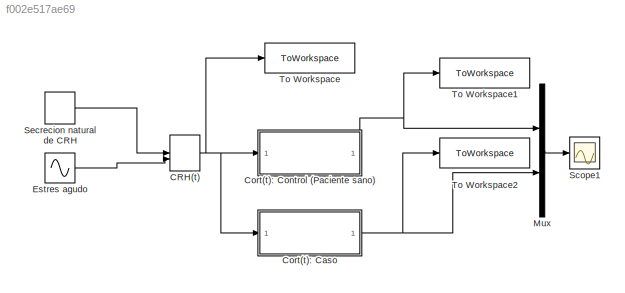
MODEL slx_f002e517ae69
KIND model
CONFIG AbsTol = 1e-5
CONFIG EnableMultiTasking = off
CONFIG FixedStep = auto
CONFIG MaxStep = 1e-3
CONFIG MinStep = auto
CONFIG RelTol = 1e-3
CONFIG SampleTimeConstraint = Unconstrained
CONFIG SolverName = ode15s
CONFIG StartTime = 0.0
CONFIG StopTime = 20
BLOCK [ManualSwitch] CRH(t)
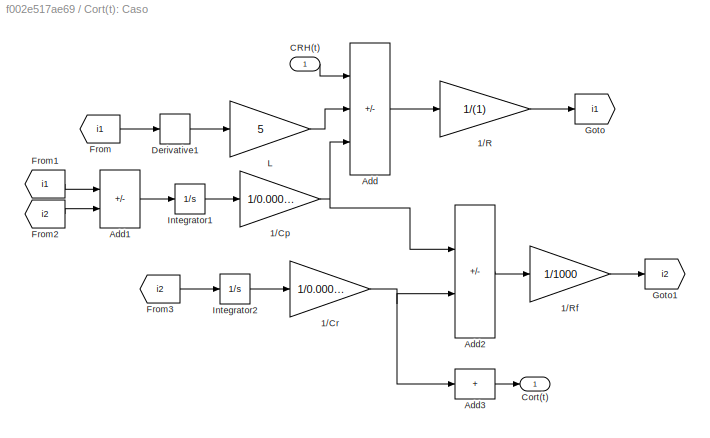
BLOCK [SubSystem] Cort(t): Caso 
BLOCK [Gain] Cort(t): Caso /1//Cp
  Gain = 1/0.000200
BLOCK [Gain] Cort(t): Caso /1//Cr
  Gain = 1/0.000500
BLOCK [Gain] Cort(t): Caso /1//R
  Gain = 1/(1)
BLOCK [Gain] Cort(t): Caso /1//Rf
  Gain = 1/1000
BLOCK [Sum] Cort(t): Caso /Add
  IconShape = rectangular
  Inputs = +--
BLOCK [Sum] Cort(t): Caso /Add1
  IconShape = rectangular
  Inputs = +-
BLOCK [Sum] Cort(t): Caso /Add2
  IconShape = rectangular
  Inputs = +-
BLOCK [Sum] Cort(t): Caso /Add3
  IconShape = rectangular
  Inputs = +
BLOCK [Inport] Cort(t): Caso /CRH(t)
BLOCK [Outport] Cort(t): Caso /Cort(t)
BLOCK [Derivative] Cort(t): Caso /Derivative1
BLOCK [From] Cort(t): Caso /From
  GotoTag = i1
BLOCK [From] Cort(t): Caso /From1
  GotoTag = i1
BLOCK [From] Cort(t): Caso /From2
  GotoTag = i2
BLOCK [From] Cort(t): Caso /From3
  GotoTag = i2
BLOCK [Goto] Cort(t): Caso /Goto
  GotoTag = i1
BLOCK [Goto] Cort(t): Caso /Goto1
  GotoTag = i2
BLOCK [Integrator] Cort(t): Caso /Integrator1
BLOCK [Integrator] Cort(t): Caso /Integrator2
BLOCK [Gain] Cort(t): Caso /L
  Gain = 5
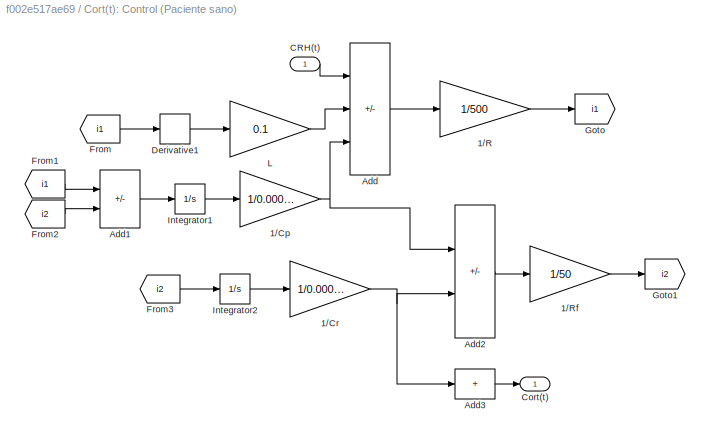
BLOCK [SubSystem] Cort(t): Control (Paciente sano)
BLOCK [Gain] Cort(t): Control (Paciente sano)/1//Cp
  Gain = 1/0.000050
BLOCK [Gain] Cort(t): Control (Paciente sano)/1//Cr
  Gain = 1/0.000010
BLOCK [Gain] Cort(t): Control (Paciente sano)/1//R
  Gain = 1/500
BLOCK [Gain] Cort(t): Control (Paciente sano)/1//Rf
  Gain = 1/50
BLOCK [Sum] Cort(t): Control (Paciente sano)/Add
  IconShape = rectangular
  Inputs = +--
BLOCK [Sum] Cort(t): Control (Paciente sano)/Add1
  IconShape = rectangular
  Inputs = +-
BLOCK [Sum] Cort(t): Control (Paciente sano)/Add2
  IconShape = rectangular
  Inputs = +-
BLOCK [Sum] Cort(t): Control (Paciente sano)/Add3
  IconShape = rectangular
  Inputs = +
BLOCK [Inport] Cort(t): Control (Paciente sano)/CRH(t)
BLOCK [Outport] Cort(t): Control (Paciente sano)/Cort(t)
BLOCK [Derivative] Cort(t): Control (Paciente sano)/Derivative1
BLOCK [From] Cort(t): Control (Paciente sano)/From
  GotoTag = i1
BLOCK [From] Cort(t): Control (Paciente sano)/From1
  GotoTag = i1
BLOCK [From] Cort(t): Control (Paciente sano)/From2
  GotoTag = i2
BLOCK [From] Cort(t): Control (Paciente sano)/From3
  GotoTag = i2
BLOCK [Goto] Cort(t): Control (Paciente sano)/Goto
  GotoTag = i1
BLOCK [Goto] Cort(t): Control (Paciente sano)/Goto1
  GotoTag = i2
BLOCK [Integrator] Cort(t): Control (Paciente sano)/Integrator1
BLOCK [Integrator] Cort(t): Control (Paciente sano)/Integrator2
BLOCK [Gain] Cort(t): Control (Paciente sano)/L
  Gain = 0.1
BLOCK [Sin] Estres agudo
  Amplitude = 2.5
  Frequency = pi
  SampleTime = 0
BLOCK [Mux] Mux
  DisplayOption = bar
  Inputs = 2
BLOCK [Scope] Scope1
  Floating = off
  NumInputPorts = 1
  ScopeSpecificationString = Simulink.scopes.TimeScopeBlockCfg('CurrentConfiguration', extmgr.ConfigurationSet(extmgr.Configuration('Core','General UI',true,'FigureColor',[0 0 0]),extmgr.Configuration('Core','Source UI',true),extmgr.Configuration('Sources','WiredSimulink',true),extmgr.Configuration('Visuals','Time Domain',true,'SerializedDisplays',{struct('MinYLimReal','-2.5','MaxYLimReal','2.5','YLabelReal','','MinYLimMag','...<+1677ch>
BLOCK [DiscretePulseGenerator] Secrecion natural de CRH
  Amplitude = 4
  Period = 1/0.5
  PhaseDelay = 1
  PulseType = Time based
  PulseWidth = 50
BLOCK [ToWorkspace] To Workspace
  FixptAsFi = on
  MaxDataPoints = inf
  SampleTime = -1
  VariableName = CRH
BLOCK [ToWorkspace] To Workspace1
  FixptAsFi = on
  MaxDataPoints = inf
  SampleTime = -1
  VariableName = Cort1
BLOCK [ToWorkspace] To Workspace2
  FixptAsFi = on
  MaxDataPoints = inf
  SampleTime = -1
  VariableName = Cort2
NET CRH(t):1 -> Cort(t): Caso :1, Cort(t): Control (Paciente sano):1, To Workspace:1
NET Cort(t): Caso /1//Cp:1 -> Cort(t): Caso /Add2:1, Cort(t): Caso /Add:3
NET Cort(t): Caso /1//Cr:1 -> Cort(t): Caso /Add2:2, Cort(t): Caso /Add3:1
LINE Cort(t): Caso /1//R:1 -> Cort(t): Caso /Goto:1
LINE Cort(t): Caso /1//Rf:1 -> Cort(t): Caso /Goto1:1
LINE Cort(t): Caso /Add1:1 -> Cort(t): Caso /Integrator1:1
LINE Cort(t): Caso /Add2:1 -> Cort(t): Caso /1//Rf:1
LINE Cort(t): Caso /Add3:1 -> Cort(t): Caso /Cort(t):1
LINE Cort(t): Caso /Add:1 -> Cort(t): Caso /1//R:1
LINE Cort(t): Caso /CRH(t):1 -> Cort(t): Caso /Add:1
LINE Cort(t): Caso /Derivative1:1 -> Cort(t): Caso /L:1
LINE Cort(t): Caso /From1:1 -> Cort(t): Caso /Add1:1
LINE Cort(t): Caso /From2:1 -> Cort(t): Caso /Add1:2
LINE Cort(t): Caso /From3:1 -> Cort(t): Caso /Integrator2:1
LINE Cort(t): Caso /From:1 -> Cort(t): Caso /Derivative1:1
LINE Cort(t): Caso /Integrator1:1 -> Cort(t): Caso /1//Cp:1
LINE Cort(t): Caso /Integrator2:1 -> Cort(t): Caso /1//Cr:1
LINE Cort(t): Caso /L:1 -> Cort(t): Caso /Add:2
NET Cort(t): Caso :1 -> Mux:2, To Workspace2:1
NET Cort(t): Control (Paciente sano)/1//Cp:1 -> Cort(t): Control (Paciente sano)/Add2:1, Cort(t): Control (Paciente sano)/Add:3
NET Cort(t): Control (Paciente sano)/1//Cr:1 -> Cort(t): Control (Paciente sano)/Add2:2, Cort(t): Control (Paciente sano)/Add3:1
LINE Cort(t): Control (Paciente sano)/1//R:1 -> Cort(t): Control (Paciente sano)/Goto:1
LINE Cort(t): Control (Paciente sano)/1//Rf:1 -> Cort(t): Control (Paciente sano)/Goto1:1
LINE Cort(t): Control (Paciente sano)/Add1:1 -> Cort(t): Control (Paciente sano)/Integrator1:1
LINE Cort(t): Control (Paciente sano)/Add2:1 -> Cort(t): Control (Paciente sano)/1//Rf:1
LINE Cort(t): Control (Paciente sano)/Add3:1 -> Cort(t): Control (Paciente sano)/Cort(t):1
LINE Cort(t): Control (Paciente sano)/Add:1 -> Cort(t): Control (Paciente sano)/1//R:1
LINE Cort(t): Control (Paciente sano)/CRH(t):1 -> Cort(t): Control (Paciente sano)/Add:1
LINE Cort(t): Control (Paciente sano)/Derivative1:1 -> Cort(t): Control (Paciente sano)/L:1
LINE Cort(t): Control (Paciente sano)/From1:1 -> Cort(t): Control (Paciente sano)/Add1:1
LINE Cort(t): Control (Paciente sano)/From2:1 -> Cort(t): Control (Paciente sano)/Add1:2
LINE Cort(t): Control (Paciente sano)/From3:1 -> Cort(t): Control (Paciente sano)/Integrator2:1
LINE Cort(t): Control (Paciente sano)/From:1 -> Cort(t): Control (Paciente sano)/Derivative1:1
LINE Cort(t): Control (Paciente sano)/Integrator1:1 -> Cort(t): Control (Paciente sano)/1//Cp:1
LINE Cort(t): Control (Paciente sano)/Integrator2:1 -> Cort(t): Control (Paciente sano)/1//Cr:1
LINE Cort(t): Control (Paciente sano)/L:1 -> Cort(t): Control (Paciente sano)/Add:2
NET Cort(t): Control (Paciente sano):1 -> Mux:1, To Workspace1:1
LINE Estres agudo:1 -> CRH(t):2
LINE Mux:1 -> Scope1:1
LINE Secrecion natural de CRH:1 -> CRH(t):1
note: NET lines group one-source signal fan-out (src -> all destinations, sorted); 1:1 wires keep LINE
